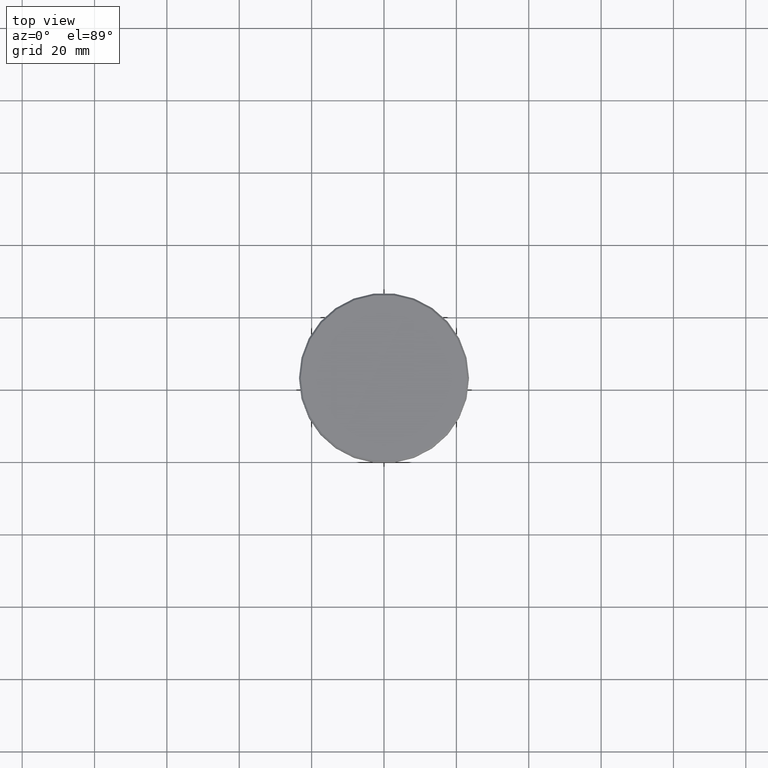
[diagram: clean part render]
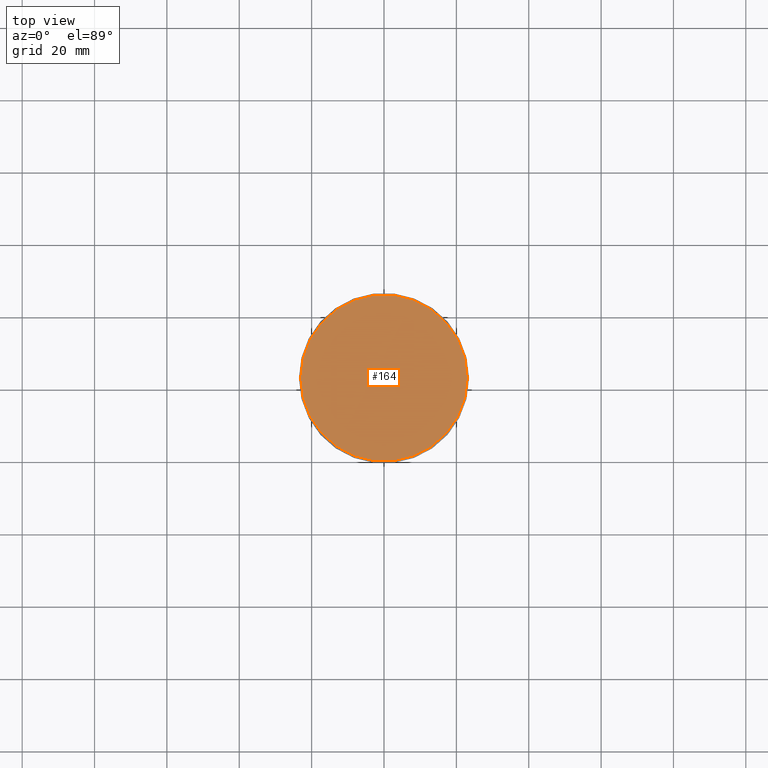
[diagram: same view with one face highlighted and labeled with its STEP entity id]
A machine part, top view. The second image highlights one B-rep face of the part: STEP entity #164.
In plain terms, the highlighted planar face has unit normal (0, -0, 1).
Its self-contained STEP definition (entity closure, byte-faithful):
#11 = EDGE_CURVE ( 'NONE', #334, #335, #653, .T. ) ;
#27 = DIRECTION ( 'NONE',  ( 1.000000000000000000, 0.000000000000000000, 0.000000000000000000 ) ) ;
#54 = DIRECTION ( 'NONE',  ( -0.000000000000000000, -0.000000000000000000, 1.000000000000000000 ) ) ;
#105 = EDGE_LOOP ( 'NONE', ( #689, #273 ) ) ;
#145 = DIRECTION ( 'NONE',  ( 1.000000000000000000, 0.000000000000000000, 0.000000000000000000 ) ) ;
#164 = ADVANCED_FACE ( 'NONE', ( #626 ), #991, .T. ) ;
#242 = CARTESIAN_POINT ( 'NONE',  ( 0.000000000000000000, 0.000000000000000000, 0.000000000000000000 ) ) ;
#273 = ORIENTED_EDGE ( 'NONE', *, *, #11, .T. ) ;
#305 = AXIS2_PLACEMENT_3D ( 'NONE', #537, #1179, #729 ) ;
#334 = VERTEX_POINT ( 'NONE', #753 ) ;
#335 = VERTEX_POINT ( 'NONE', #1116 ) ;
#388 = AXIS2_PLACEMENT_3D ( 'NONE', #972, #54, #145 ) ;
#537 = CARTESIAN_POINT ( 'NONE',  ( 0.000000000000000000, 0.000000000000000000, 0.000000000000000000 ) ) ;
#626 = FACE_OUTER_BOUND ( 'NONE', #105, .T. ) ;
#653 = CIRCLE ( 'NONE', #726, 22.99999999999996803 ) ;
#689 = ORIENTED_EDGE ( 'NONE', *, *, #882, .T. ) ;
#726 = AXIS2_PLACEMENT_3D ( 'NONE', #242, #883, #27 ) ;
#729 = DIRECTION ( 'NONE',  ( 1.000000000000000000, 0.000000000000000000, 0.000000000000000000 ) ) ;
#753 = CARTESIAN_POINT ( 'NONE',  ( 22.99999999999996803, 2.847303808017594561E-15, 0.000000000000000000 ) ) ;
#882 = EDGE_CURVE ( 'NONE', #335, #334, #1058, .T. ) ;
#883 = DIRECTION ( 'NONE',  ( -0.000000000000000000, -0.000000000000000000, 1.000000000000000000 ) ) ;
#972 = CARTESIAN_POINT ( 'NONE',  ( 0.000000000000000000, 0.000000000000000000, 0.000000000000000000 ) ) ;
#991 = PLANE ( 'NONE',  #305 ) ;
#1058 = CIRCLE ( 'NONE', #388, 22.99999999999996803 ) ;
#1116 = CARTESIAN_POINT ( 'NONE',  ( -22.99999999999996803, 0.000000000000000000, 0.000000000000000000 ) ) ;
#1179 = DIRECTION ( 'NONE',  ( 0.000000000000000000, -0.000000000000000000, 1.000000000000000000 ) ) ;